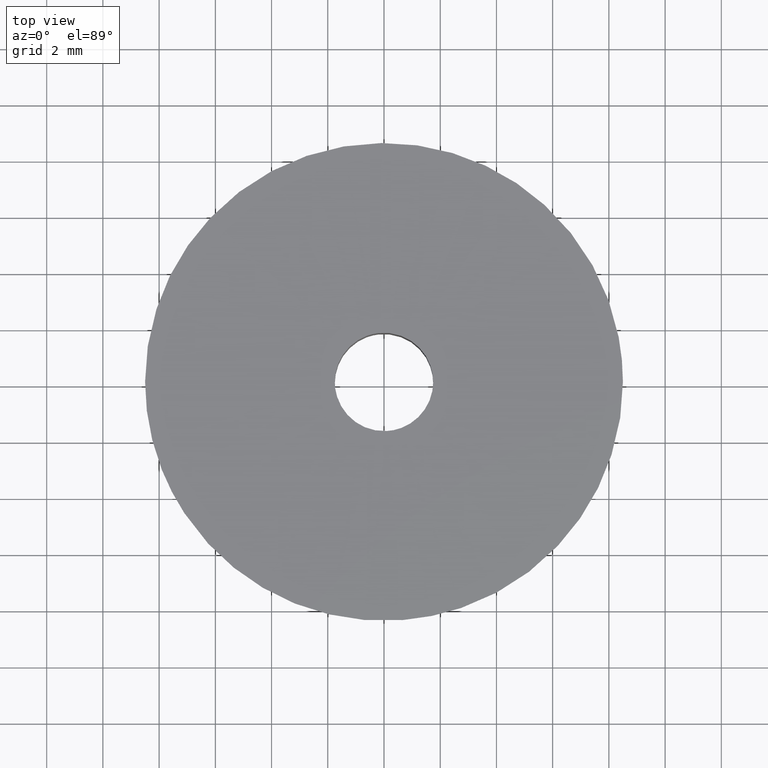
[diagram: clean part render]
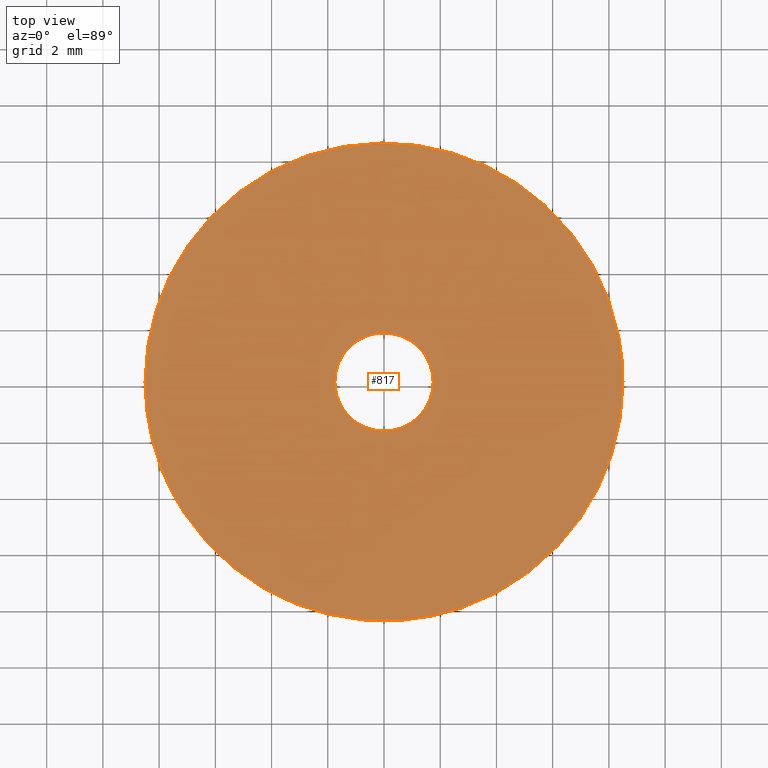
[diagram: same view with one face highlighted and labeled with its STEP entity id]
A machine part, top view. The second image highlights one B-rep face of the part: STEP entity #817.
In plain terms, the highlighted face is a freeform B-spline surface patch.
Its self-contained STEP definition (entity closure, byte-faithful):
#77=CARTESIAN_POINT('',(0.666897430078629,-8.473797589413332,9.999998687420924));
#78=VERTEX_POINT('',#77);
#84=CARTESIAN_POINT('',(-7.903848539507668,-3.127167380244424,9.999998564441299));
#85=VERTEX_POINT('',#84);
#86=CARTESIAN_POINT('',(0.666897430078629,-8.473797589413332,9.999998687420924));
#87=CARTESIAN_POINT('',(0.333963455127641,-8.499999871220485,9.999998684150841));
#88=CARTESIAN_POINT('',(-2.441890E-009,-8.499999873409490,9.999998680701287));
#89=CARTESIAN_POINT('',(-5.778080802938428,-8.499999911282620,9.999998621018747));
#90=CARTESIAN_POINT('',(-7.903848539507668,-3.127167380244425,9.999998564441299));
#98=(BOUNDED_CURVE()B_SPLINE_CURVE(2,(#86,#87,#88,#89,#90),.UNSPECIFIED.,.F.,.U.)B_SPLINE_CURVE_WITH_KNOTS((3,2,3),(0.736331399219582,0.750000000000000,0.937532605541042),.UNSPECIFIED.)CURVE()GEOMETRIC_REPRESENTATION_ITEM()RATIONAL_B_SPLINE_CURVE((0.969723561915069,0.983986238082989,1.0,0.780291886122443,0.890203252676616))REPRESENTATION_ITEM(''));
#99=EDGE_CURVE('',#78,#85,#98,.T.);
#151=CARTESIAN_POINT('',(-8.500000000000000,0.0,10.0));
#152=VERTEX_POINT('',#151);
#153=CARTESIAN_POINT('',(-7.903848539507668,-3.127167380244425,9.999998564441299));
#154=CARTESIAN_POINT('',(-8.499999933256024,-1.620407702954398,9.999999282220649));
#155=CARTESIAN_POINT('',(-8.500000000000000,0.0,10.0));
#163=(BOUNDED_CURVE()B_SPLINE_CURVE(2,(#153,#154,#155),.UNSPECIFIED.,.F.,.U.)B_SPLINE_CURVE_WITH_KNOTS((3,3),(0.937532605541042,1.0),.UNSPECIFIED.)CURVE()GEOMETRIC_REPRESENTATION_ITEM()RATIONAL_B_SPLINE_CURVE((0.890203252676616,0.926814895064105,1.0))REPRESENTATION_ITEM(''));
#164=EDGE_CURVE('',#85,#152,#163,.T.);
#166=CARTESIAN_POINT('',(8.500000000000000,0.0,10.0));
#167=VERTEX_POINT('',#166);
#168=CARTESIAN_POINT('',(-8.500000000000000,0.0,10.0));
#169=CARTESIAN_POINT('',(-8.500000000000002,8.500000000000002,10.000000000000002));
#170=CARTESIAN_POINT('',(0.0,8.500000000000000,10.0));
#171=CARTESIAN_POINT('',(8.500000000000002,8.500000000000002,10.000000000000002));
#172=CARTESIAN_POINT('',(8.500000000000000,0.0,10.0));
#180=(BOUNDED_CURVE()B_SPLINE_CURVE(2,(#168,#169,#170,#171,#172),.UNSPECIFIED.,.F.,.U.)B_SPLINE_CURVE_WITH_KNOTS((3,2,3),(0.0,0.250000000000000,0.500000000000000),.UNSPECIFIED.)CURVE()GEOMETRIC_REPRESENTATION_ITEM()RATIONAL_B_SPLINE_CURVE((1.0,0.707106781186548,1.0,0.707106781186548,1.0))REPRESENTATION_ITEM(''));
#181=EDGE_CURVE('',#152,#167,#180,.T.);
#183=CARTESIAN_POINT('',(8.500000000000000,0.0,10.0));
#184=CARTESIAN_POINT('',(8.499999994850796,-7.857323646412445,9.999999343710460));
#185=CARTESIAN_POINT('',(0.666897430078629,-8.473797589413332,9.999998687420924));
#193=(BOUNDED_CURVE()B_SPLINE_CURVE(2,(#183,#184,#185),.UNSPECIFIED.,.F.,.U.)B_SPLINE_CURVE_WITH_KNOTS((3,3),(0.500000000000000,0.736331399219582),.UNSPECIFIED.)CURVE()GEOMETRIC_REPRESENTATION_ITEM()RATIONAL_B_SPLINE_CURVE((1.0,0.723120543103558,0.969723561915069))REPRESENTATION_ITEM(''));
#194=EDGE_CURVE('',#167,#78,#193,.T.);
#282=CARTESIAN_POINT('',(-0.206559910658016,1.737766671135383,10.0));
#283=VERTEX_POINT('',#282);
#284=CARTESIAN_POINT('',(1.750000000000000,0.0,10.0));
#285=VERTEX_POINT('',#284);
#286=CARTESIAN_POINT('',(-0.206559910658016,1.737766671135384,10.0));
#287=CARTESIAN_POINT('',(-0.103642209399623,1.750000000000000,10.000000000000002));
#288=CARTESIAN_POINT('',(0.0,1.750000000000000,10.0));
#289=CARTESIAN_POINT('',(1.750000000000000,1.750000000000000,10.0));
#290=CARTESIAN_POINT('',(1.750000000000000,0.0,10.0));
#298=(BOUNDED_CURVE()B_SPLINE_CURVE(2,(#286,#287,#288,#289,#290),.UNSPECIFIED.,.F.,.U.)B_SPLINE_CURVE_WITH_KNOTS((3,2,3),(0.229562473513954,0.250000000000000,0.500000000000000),.UNSPECIFIED.)CURVE()GEOMETRIC_REPRESENTATION_ITEM()RATIONAL_B_SPLINE_CURVE((0.956026754184573,0.976055948331668,1.0,0.707106781186547,1.0))REPRESENTATION_ITEM(''));
#299=EDGE_CURVE('',#283,#285,#298,.T.);
#340=CARTESIAN_POINT('',(0.106832550060752,-1.746736043665946,9.999999999999979));
#341=VERTEX_POINT('',#340);
#347=CARTESIAN_POINT('',(1.750000000000000,0.0,10.0));
#348=CARTESIAN_POINT('',(1.749999999999999,-1.646237877679438,9.999999999999998));
#349=CARTESIAN_POINT('',(0.106832550060752,-1.746736043665946,9.999999999999979));
#357=(BOUNDED_CURVE()B_SPLINE_CURVE(2,(#347,#348,#349),.UNSPECIFIED.,.F.,.U.)B_SPLINE_CURVE_WITH_KNOTS((3,3),(0.500000000000000,0.739333198739483),.UNSPECIFIED.)CURVE()GEOMETRIC_REPRESENTATION_ITEM()RATIONAL_B_SPLINE_CURVE((1.0,0.719603716209092,0.976072548532919))REPRESENTATION_ITEM(''));
#358=EDGE_CURVE('',#285,#341,#357,.T.);
#381=CARTESIAN_POINT('',(-1.750000000000000,0.0,10.0));
#382=VERTEX_POINT('',#381);
#383=CARTESIAN_POINT('',(-1.750000000000000,0.0,10.0));
#384=CARTESIAN_POINT('',(-1.750000000000001,1.554305420399242,10.000000000000002));
#385=CARTESIAN_POINT('',(-0.206559910658016,1.737766671135384,10.000000000000002));
#393=(BOUNDED_CURVE()B_SPLINE_CURVE(2,(#383,#384,#385),.UNSPECIFIED.,.F.,.U.)B_SPLINE_CURVE_WITH_KNOTS((3,3),(0.0,0.229562473513954),.UNSPECIFIED.)CURVE()GEOMETRIC_REPRESENTATION_ITEM()RATIONAL_B_SPLINE_CURVE((1.0,0.731050832854880,0.956026754184574))REPRESENTATION_ITEM(''));
#394=EDGE_CURVE('',#382,#283,#393,.T.);
#396=CARTESIAN_POINT('',(0.106832550060752,-1.746736043665946,9.999999999999979));
#397=CARTESIAN_POINT('',(0.053466135353585,-1.750000000000000,10.000000000000002));
#398=CARTESIAN_POINT('',(0.0,-1.750000000000000,10.0));
#399=CARTESIAN_POINT('',(-1.750000000000000,-1.750000000000000,10.0));
#400=CARTESIAN_POINT('',(-1.750000000000000,0.0,10.0));
#408=(BOUNDED_CURVE()B_SPLINE_CURVE(2,(#396,#397,#398,#399,#400),.UNSPECIFIED.,.F.,.U.)B_SPLINE_CURVE_WITH_KNOTS((3,2,3),(0.739333198739483,0.750000000000000,1.0),.UNSPECIFIED.)CURVE()GEOMETRIC_REPRESENTATION_ITEM()RATIONAL_B_SPLINE_CURVE((0.976072548532919,0.987503064977455,1.0,0.707106781186547,1.0))REPRESENTATION_ITEM(''));
#409=EDGE_CURVE('',#341,#382,#408,.T.);
#800=CARTESIAN_POINT('',(9.349149967050700,-9.348972828991860,10.0));
#801=CARTESIAN_POINT('',(-9.349150423026234,-9.348972828991860,10.0));
#802=CARTESIAN_POINT('',(9.349149967050700,9.349141995914431,10.0));
#803=CARTESIAN_POINT('',(-9.349150423026234,9.349141995914431,10.0));
#804=B_SPLINE_SURFACE_WITH_KNOTS('',1,1,((#800,#802),(#801,#803)),.UNSPECIFIED.,.F.,.F.,.U.,(2,2),(2,2),(0.0,18.698300390076930),(0.0,18.698114824906291),.UNSPECIFIED.);
#805=ORIENTED_EDGE('',*,*,#164,.F.);
#806=ORIENTED_EDGE('',*,*,#99,.F.);
#807=ORIENTED_EDGE('',*,*,#194,.F.);
#808=ORIENTED_EDGE('',*,*,#181,.F.);
#809=EDGE_LOOP('',(#805,#806,#807,#808));
#810=FACE_OUTER_BOUND('',#809,.T.);
#811=ORIENTED_EDGE('',*,*,#358,.T.);
#812=ORIENTED_EDGE('',*,*,#409,.T.);
#813=ORIENTED_EDGE('',*,*,#394,.T.);
#814=ORIENTED_EDGE('',*,*,#299,.T.);
#815=EDGE_LOOP('',(#811,#812,#813,#814));
#816=FACE_BOUND('',#815,.T.);
#817=ADVANCED_FACE('',(#810,#816),#804,.F.);